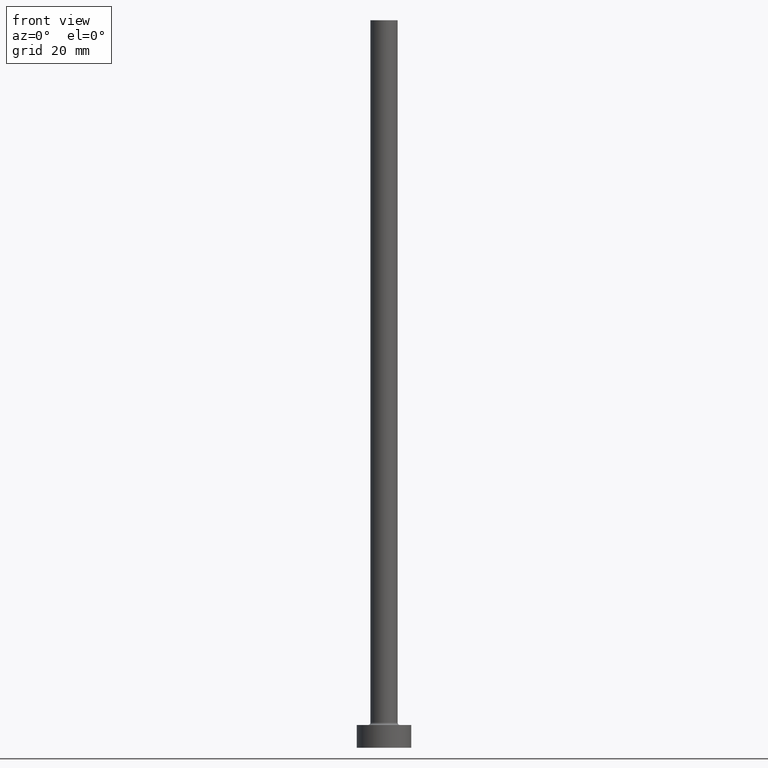
[diagram: clean part render]
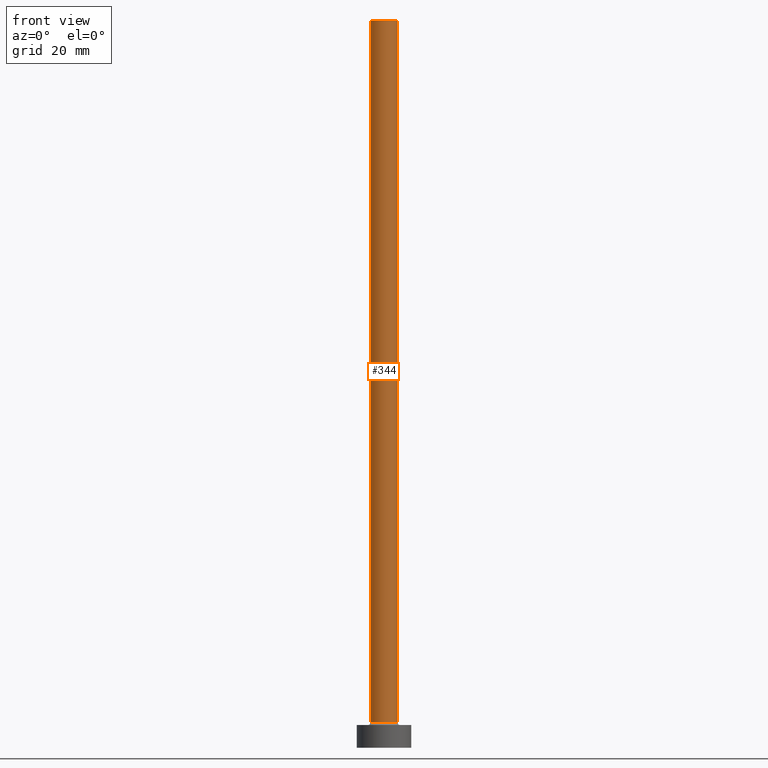
[diagram: same view with one face highlighted and labeled with its STEP entity id]
A machine part, front view. The second image highlights one B-rep face of the part: STEP entity #344.
In plain terms, the highlighted cylindrical surface (edge-blend (fillet) strip) has radius 3 mm, axis along (-0, -0, -1).
Its self-contained STEP definition (entity closure, byte-faithful):
#11 = CARTESIAN_POINT ( 'NONE',  ( -3.000000000000000444, 0.000000000000000000, 160.0000000000000000 ) ) ;
#16 = ORIENTED_EDGE ( 'NONE', *, *, #78, .F. ) ;
#26 = VERTEX_POINT ( 'NONE', #253 ) ;
#29 = CARTESIAN_POINT ( 'NONE',  ( 0.000000000000000000, 0.000000000000000000, 160.0000000000000000 ) ) ;
#37 = ORIENTED_EDGE ( 'NONE', *, *, #239, .T. ) ;
#42 = CIRCLE ( 'NONE', #437, 3.000000000000000444 ) ;
#56 = EDGE_LOOP ( 'NONE', ( #346, #16, #246, #37 ) ) ;
#62 = EDGE_CURVE ( 'NONE', #277, #343, #147, .T. ) ;
#68 = DIRECTION ( 'NONE',  ( 0.000000000000000000, 0.000000000000000000, 1.000000000000000000 ) ) ;
#70 = CARTESIAN_POINT ( 'NONE',  ( 3.000000000000000444, 3.673940397442060361E-16, 160.0000000000000000 ) ) ;
#74 = CARTESIAN_POINT ( 'NONE',  ( 3.000000000000000444, 3.673940397442060361E-16, 160.0000000000000000 ) ) ;
#78 = EDGE_CURVE ( 'NONE', #26, #277, #79, .T. ) ;
#79 = CIRCLE ( 'NONE', #144, 3.000000000000000444 ) ;
#82 = DIRECTION ( 'NONE',  ( -0.000000000000000000, -0.000000000000000000, -1.000000000000000000 ) ) ;
#100 = LINE ( 'NONE', #11, #341 ) ;
#104 = VECTOR ( 'NONE', #217, 1000.000000000000000 ) ;
#122 = AXIS2_PLACEMENT_3D ( 'NONE', #394, #82, #225 ) ;
#127 = CARTESIAN_POINT ( 'NONE',  ( 3.000000000000000444, 3.673940397442060361E-16, 5.500000000000005329 ) ) ;
#144 = AXIS2_PLACEMENT_3D ( 'NONE', #29, #152, #177 ) ;
#147 = LINE ( 'NONE', #70, #104 ) ;
#152 = DIRECTION ( 'NONE',  ( 0.000000000000000000, 0.000000000000000000, 1.000000000000000000 ) ) ;
#154 = EDGE_CURVE ( 'NONE', #26, #332, #100, .T. ) ;
#177 = DIRECTION ( 'NONE',  ( 1.000000000000000000, 0.000000000000000000, 0.000000000000000000 ) ) ;
#195 = CYLINDRICAL_SURFACE ( 'NONE', #122, 3.000000000000000444 ) ;
#217 = DIRECTION ( 'NONE',  ( -0.000000000000000000, -0.000000000000000000, -1.000000000000000000 ) ) ;
#225 = DIRECTION ( 'NONE',  ( -1.000000000000000000, 0.000000000000000000, 0.000000000000000000 ) ) ;
#239 = EDGE_CURVE ( 'NONE', #332, #343, #42, .T. ) ;
#246 = ORIENTED_EDGE ( 'NONE', *, *, #154, .T. ) ;
#253 = CARTESIAN_POINT ( 'NONE',  ( -3.000000000000000444, 0.000000000000000000, 160.0000000000000000 ) ) ;
#277 = VERTEX_POINT ( 'NONE', #74 ) ;
#296 = FACE_OUTER_BOUND ( 'NONE', #56, .T. ) ;
#314 = CARTESIAN_POINT ( 'NONE',  ( 0.000000000000000000, 0.000000000000000000, 5.500000000000005329 ) ) ;
#332 = VERTEX_POINT ( 'NONE', #387 ) ;
#341 = VECTOR ( 'NONE', #440, 1000.000000000000000 ) ;
#343 = VERTEX_POINT ( 'NONE', #127 ) ;
#344 = ADVANCED_FACE ( 'NONE', ( #296 ), #195, .T. ) ;
#346 = ORIENTED_EDGE ( 'NONE', *, *, #62, .F. ) ;
#383 = DIRECTION ( 'NONE',  ( 1.000000000000000000, 0.000000000000000000, 0.000000000000000000 ) ) ;
#387 = CARTESIAN_POINT ( 'NONE',  ( -3.000000000000000444, 0.000000000000000000, 5.500000000000005329 ) ) ;
#394 = CARTESIAN_POINT ( 'NONE',  ( 0.000000000000000000, 0.000000000000000000, 160.0000000000000000 ) ) ;
#437 = AXIS2_PLACEMENT_3D ( 'NONE', #314, #68, #383 ) ;
#440 = DIRECTION ( 'NONE',  ( -0.000000000000000000, -0.000000000000000000, -1.000000000000000000 ) ) ;